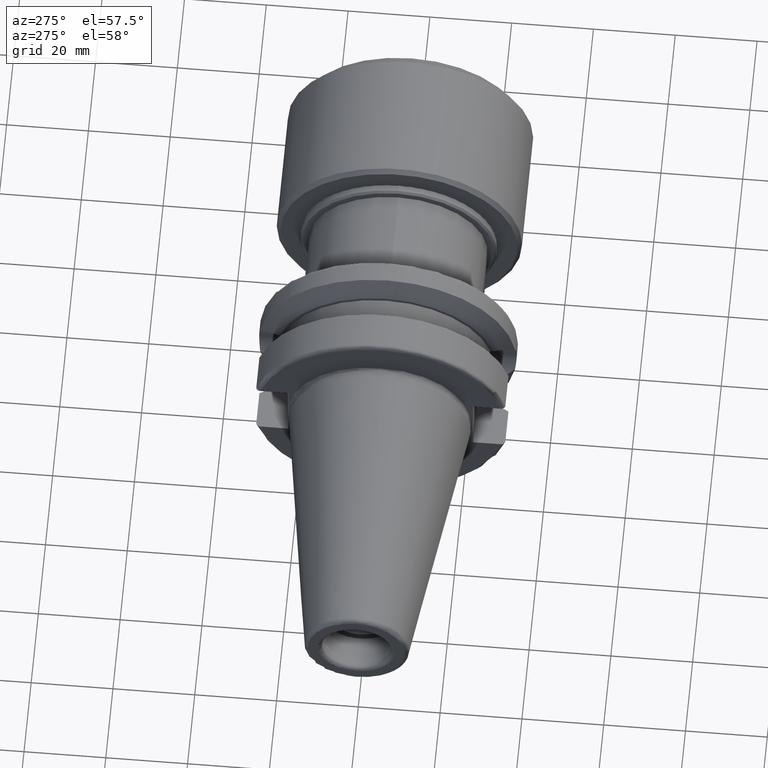
[diagram: clean part render]
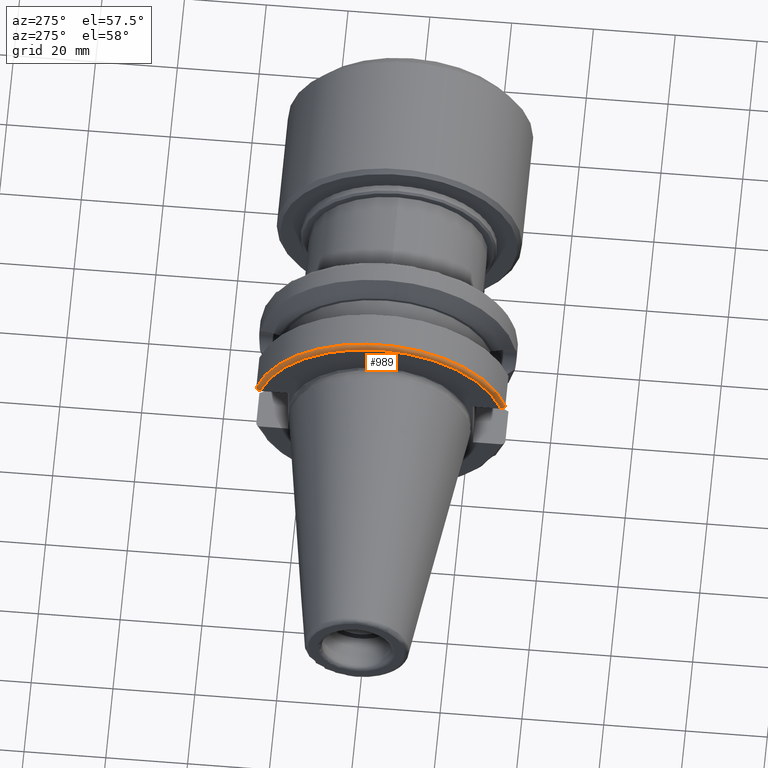
[diagram: same view with one face highlighted and labeled with its STEP entity id]
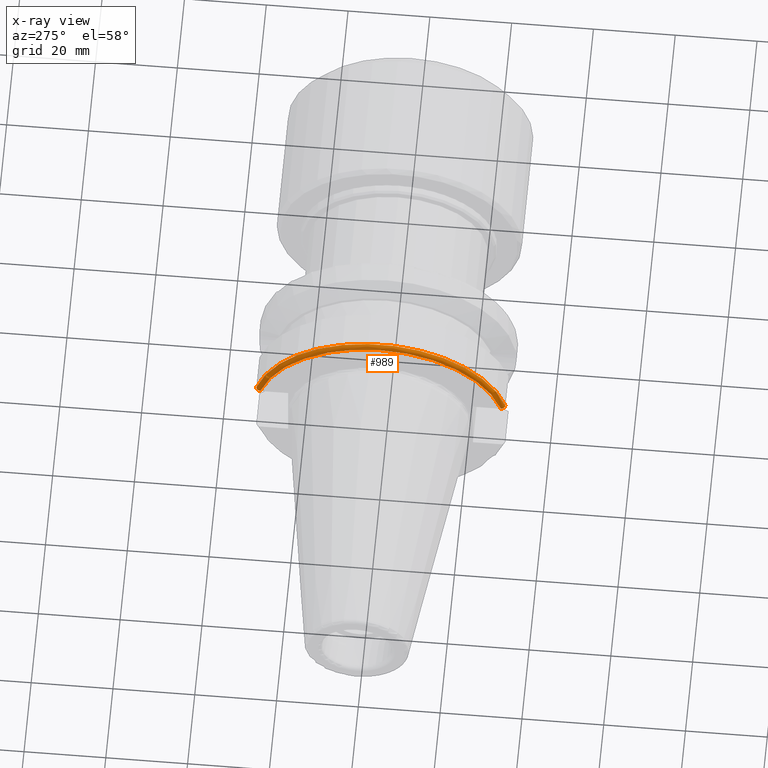
[diagram: x-ray of the same camera — body ghosted, the highlighted face saturated]
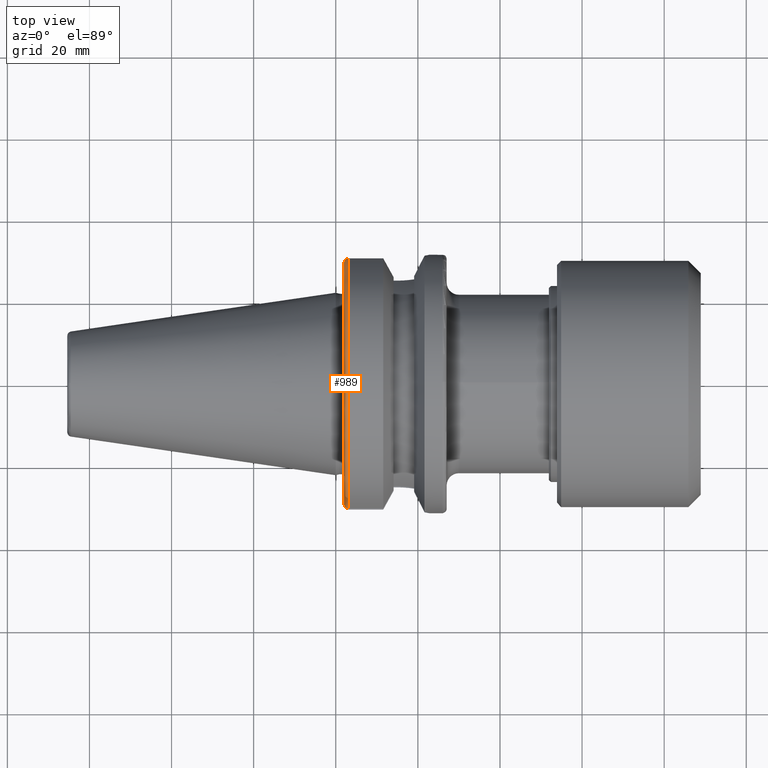
[diagram: same view with one face highlighted and labeled with its STEP entity id]
A machine part, auxiliary view. The second image highlights one B-rep face of the part: STEP entity #989.
The next image is the same camera in x-ray: the body ghosted, the highlighted face saturated — about 0% of this face is hidden behind the body in this view.
A second angle (top view) of the same face is appended — the face is thin or edge-on in the first view.
In plain terms, the highlighted toroidal blend (fillet) surface has major radius 30.5 mm and minor (blend) radius 1 mm.
Its self-contained STEP definition (entity closure, byte-faithful):
#45=B_SPLINE_CURVE_WITH_KNOTS('',3,(#1681,#1682,#1683,#1684,#1685,#1686,
#1687,#1688,#1689,#1690),.UNSPECIFIED.,.F.,.F.,(4,2,2,2,4),(-0.150751871388631,
-0.111946181815504,-0.0738743445372396,-0.0366169489027566,0.),
 .UNSPECIFIED.);
#53=B_SPLINE_CURVE_WITH_KNOTS('',3,(#1822,#1823,#1824,#1825,#1826,#1827,
#1828,#1829,#1830,#1831),.UNSPECIFIED.,.F.,.F.,(4,2,2,2,4),(0.,0.0366169489027566,
0.0738743445372396,0.111946181815504,0.150751871388631),.UNSPECIFIED.);
#58=TOROIDAL_SURFACE('',#1172,30.5,1.00000000000001);
#150=FACE_OUTER_BOUND('',#216,.T.);
#216=EDGE_LOOP('',(#853,#854,#855,#856));
#393=CIRCLE('',#1171,30.5);
#394=CIRCLE('',#1173,31.5);
#453=VERTEX_POINT('',#1678);
#454=VERTEX_POINT('',#1680);
#481=VERTEX_POINT('',#1819);
#482=VERTEX_POINT('',#1821);
#558=EDGE_CURVE('',#454,#453,#45,.T.);
#599=EDGE_CURVE('',#482,#481,#53,.T.);
#620=EDGE_CURVE('',#481,#454,#393,.T.);
#621=EDGE_CURVE('',#482,#453,#394,.T.);
#853=ORIENTED_EDGE('',*,*,#558,.T.);
#854=ORIENTED_EDGE('',*,*,#621,.F.);
#855=ORIENTED_EDGE('',*,*,#599,.T.);
#856=ORIENTED_EDGE('',*,*,#620,.T.);
#989=ADVANCED_FACE('',(#150),#58,.T.);
#1171=AXIS2_PLACEMENT_3D('',#1874,#1439,#1440);
#1172=AXIS2_PLACEMENT_3D('',#1875,#1441,#1442);
#1173=AXIS2_PLACEMENT_3D('',#1876,#1443,#1444);
#1439=DIRECTION('center_axis',(1.,0.,0.));
#1440=DIRECTION('ref_axis',(0.,0.,-1.));
#1441=DIRECTION('center_axis',(1.,0.,0.));
#1442=DIRECTION('ref_axis',(0.,-1.22464679914735E-16,1.));
#1443=DIRECTION('center_axis',(1.,0.,0.));
#1444=DIRECTION('ref_axis',(0.,0.,-1.));
#1678=CARTESIAN_POINT('',(2.99999999999999,-30.4540227227866,8.05));
#1680=CARTESIAN_POINT('',(1.99999999999999,-29.4184890842477,8.05));
#1681=CARTESIAN_POINT('Ctrl Pts',(1.99999999999999,-29.4184890842477,8.05));
#1682=CARTESIAN_POINT('Ctrl Pts',(1.99999999999999,-29.5478413828248,8.05));
#1683=CARTESIAN_POINT('Ctrl Pts',(2.02950258743517,-29.7002346307938,8.05));
#1684=CARTESIAN_POINT('Ctrl Pts',(2.12587454939785,-29.9376810968085,8.05));
#1685=CARTESIAN_POINT('Ctrl Pts',(2.2089547883793,-30.0653098968133,8.05));
#1686=CARTESIAN_POINT('Ctrl Pts',(2.38465986426588,-30.2446912007727,8.05));
#1687=CARTESIAN_POINT('Ctrl Pts',(2.50758665841081,-30.3289456947341,8.05));
#1688=CARTESIAN_POINT('Ctrl Pts',(2.73442803339431,-30.4247631098996,8.05));
#1689=CARTESIAN_POINT('Ctrl Pts',(2.87794350365748,-30.4540227227866,8.05));
#1690=CARTESIAN_POINT('Ctrl Pts',(3.,-30.4540227227866,8.05));
#1819=CARTESIAN_POINT('',(1.99999999999999,29.4184890842477,8.05));
#1821=CARTESIAN_POINT('',(2.99999999999999,30.4540227227866,8.05));
#1822=CARTESIAN_POINT('Ctrl Pts',(3.,30.4540227227866,8.05));
#1823=CARTESIAN_POINT('Ctrl Pts',(2.87794350365748,30.4540227227866,8.05));
#1824=CARTESIAN_POINT('Ctrl Pts',(2.73442803339431,30.4247631098996,8.05));
#1825=CARTESIAN_POINT('Ctrl Pts',(2.50758665841081,30.3289456947341,8.05));
#1826=CARTESIAN_POINT('Ctrl Pts',(2.38465986426588,30.2446912007727,8.05));
#1827=CARTESIAN_POINT('Ctrl Pts',(2.2089547883793,30.0653098968133,8.05));
#1828=CARTESIAN_POINT('Ctrl Pts',(2.12587454939785,29.9376810968085,8.05));
#1829=CARTESIAN_POINT('Ctrl Pts',(2.02950258743517,29.7002346307938,8.05));
#1830=CARTESIAN_POINT('Ctrl Pts',(1.99999999999999,29.5478413828248,8.05));
#1831=CARTESIAN_POINT('Ctrl Pts',(1.99999999999999,29.4184890842477,8.05));
#1874=CARTESIAN_POINT('Origin',(1.99999999999999,0.,0.));
#1875=CARTESIAN_POINT('Origin',(3.,0.,0.));
#1876=CARTESIAN_POINT('Origin',(2.99999999999999,0.,0.));